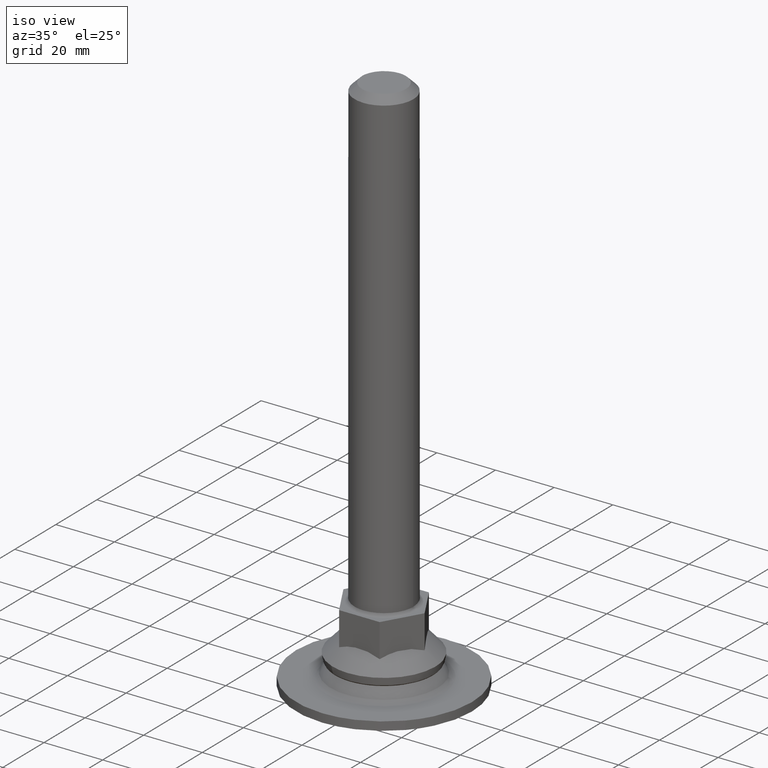
[diagram: clean part render]
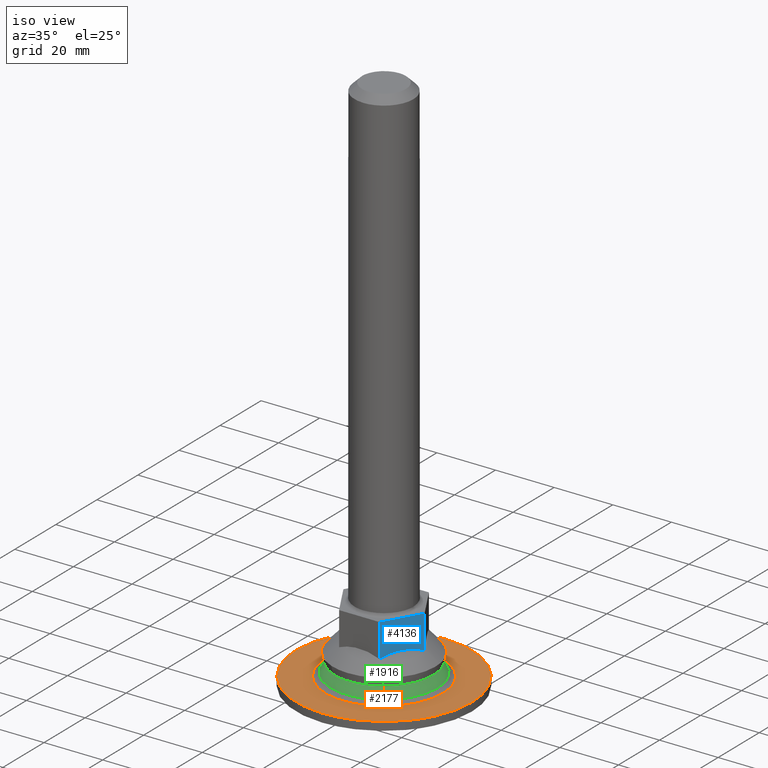
[diagram: same view with three faces highlighted in distinct colors, each labeled with its STEP entity id]
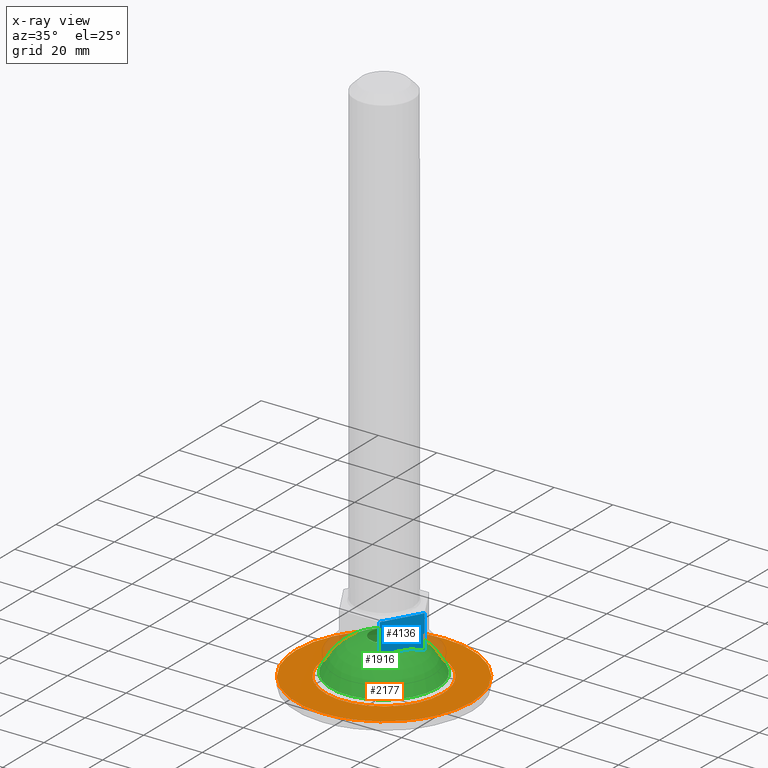
[diagram: x-ray of the same camera — body ghosted, the three highlighted faces saturated]
A machine part, iso view with three faces highlighted in distinct colors.
The next image is the same camera in x-ray (body ghosted, the three faces saturated) — at least one of them is partly hidden behind the body in this view.
Their STEP definitions:

[orange] entity #2177 — the highlighted face is a freeform B-spline surface patch.
#1946=CARTESIAN_POINT('',(-18.113112065568039,-8.523383559939250,2.900000000000000));
#1947=VERTEX_POINT('',#1946);
#1948=CARTESIAN_POINT('',(-20.018314020078449,0.0,2.900000000000000));
#1949=VERTEX_POINT('',#1948);
#1950=CARTESIAN_POINT('',(-18.113112065568039,-8.523383559939250,2.900000000000000));
#1951=CARTESIAN_POINT('',(-18.875215404196680,-6.905380911988671,2.900000000000000));
#1952=CARTESIAN_POINT('',(-19.765607802161401,-4.081268612576571,2.900000000000010));
#1953=CARTESIAN_POINT('',(-20.018380793515661,-1.146418063566522,2.899999999999992));
#1954=CARTESIAN_POINT('',(-20.018314020078449,0.0,2.900000000000000));
#1955=B_SPLINE_CURVE_WITH_KNOTS('',3,(#1950,#1951,#1952,#1953,#1954),.UNSPECIFIED.,.F.,.U.,(4,1,4),(9.962516E-009,5.365258771038956,8.804531681340230),.UNSPECIFIED.);
#1956=EDGE_CURVE('',#1947,#1949,#1955,.T.);
#1970=CARTESIAN_POINT('',(18.113112065568039,8.523383559939244,2.900000000000000));
#1971=VERTEX_POINT('',#1970);
#1981=CARTESIAN_POINT('',(-20.018314020078449,0.0,2.900000000000000));
#1982=CARTESIAN_POINT('',(-20.018619888661600,1.549314066991939,2.899999999999999));
#1983=CARTESIAN_POINT('',(-19.747160723030628,3.873113045565511,2.900000000000000));
#1984=CARTESIAN_POINT('',(-18.838579062397990,6.914709258980910,2.900000000000002));
#1985=CARTESIAN_POINT('',(-17.737672390841201,9.436957946034779,2.900000000000004));
#1986=CARTESIAN_POINT('',(-16.275041612781550,11.773164258463771,2.899999999999985));
#1987=CARTESIAN_POINT('',(-14.362213815928630,14.035715007006740,2.899999999999990));
#1988=CARTESIAN_POINT('',(-11.892065158889981,16.254485176843730,2.900000000000007));
#1989=CARTESIAN_POINT('',(-8.856671574032925,18.081452186412012,2.899999999999953));
#1990=CARTESIAN_POINT('',(-5.614711514958757,19.290760925762498,2.900000000000092));
#1991=CARTESIAN_POINT('',(-2.575555213228644,19.936525534881120,2.899999999999882));
#1992=CARTESIAN_POINT('',(1.024126004391789,20.120718283884528,2.900000000000152));
#1993=CARTESIAN_POINT('',(4.740548224326131,19.581075377136990,2.899999999999757));
#1994=CARTESIAN_POINT('',(8.005974629336039,18.427783213753241,2.900000000000148));
#1995=CARTESIAN_POINT('',(10.749602129699619,16.974266931698690,2.899999999999918));
#1996=CARTESIAN_POINT('',(12.968708523717449,15.339415989959949,2.900000000000034));
#1997=CARTESIAN_POINT('',(15.080340192332891,13.261184725226711,2.899999999999990));
#1998=CARTESIAN_POINT('',(16.761178533215361,11.078230272458780,2.900000000000005));
#1999=CARTESIAN_POINT('',(17.723338515510200,9.351762272085017,2.900000000000000));
#2000=CARTESIAN_POINT('',(18.113112065568039,8.523383559939244,2.900000000000000));
#2001=B_SPLINE_CURVE_WITH_KNOTS('',3,(#1981,#1982,#1983,#1984,#1985,#1986,#1987,#1988,#1989,#1990,#1991,#1992,#1993,#1994,#1995,#1996,#1997,#1998,#1999,#2000),.UNSPECIFIED.,.F.,.U.,(4,1,1,1,1,1,1,1,1,1,1,1,1,1,1,1,1,4),(0.000000131141519,4.647866323908055,6.971903260430949,9.507149627834913,12.887469781130919,15.211461231222779,18.380540329420249,22.817240534353431,25.775041420334642,28.732632208260281,32.112963540191629,36.549684220806569,39.930029233952517,42.465290953835307,45.845637009594661,48.169621989441673,51.338623570747053,54.085124896547342),.UNSPECIFIED.);
#2002=EDGE_CURVE('',#1949,#1971,#2001,.T.);
#2036=CARTESIAN_POINT('',(20.018314020078449,0.0,2.900000000000000));
#2037=VERTEX_POINT('',#2036);
#2038=CARTESIAN_POINT('',(20.018314020078449,0.0,2.900000000000000));
#2039=CARTESIAN_POINT('',(20.018405192923311,-1.267581883032739,2.900000000000001));
#2040=CARTESIAN_POINT('',(19.756755103742218,-4.014098102899047,2.900000000000000));
#2041=CARTESIAN_POINT('',(18.686189119827318,-7.465502171122967,2.899999999999995));
#2042=CARTESIAN_POINT('',(17.169396423438371,-10.414934486880160,2.900000000000025));
#2043=CARTESIAN_POINT('',(15.546408083359440,-12.726730050516510,2.899999999999920));
#2044=CARTESIAN_POINT('',(13.600696688700021,-14.774344361302321,2.900000000000068));
#2045=CARTESIAN_POINT('',(11.229403344878611,-16.667482521605240,2.899999999999939));
#2046=CARTESIAN_POINT('',(8.346648961917992,-18.320825276115119,2.900000000000051));
#2047=CARTESIAN_POINT('',(5.207725591887035,-19.416974232687991,2.899999999999915));
#2048=CARTESIAN_POINT('',(2.012894677695728,-19.990683616203160,2.900000000000056));
#2049=CARTESIAN_POINT('',(-0.883417177077428,-20.077476692384661,2.899999999999954));
#2050=CARTESIAN_POINT('',(-4.176028704004065,-19.670159543430099,2.900000000000027));
#2051=CARTESIAN_POINT('',(-7.365202895572880,-18.730087984996910,2.899999999999894));
#2052=CARTESIAN_POINT('',(-10.837786195906130,-16.983272050579451,2.900000000000036));
#2053=CARTESIAN_POINT('',(-13.633674453955150,-14.807447503587040,2.899999999999988));
#2054=CARTESIAN_POINT('',(-16.222785224871931,-11.914364937945860,2.900000000000008));
#2055=CARTESIAN_POINT('',(-17.483666882358008,-9.861637941204618,2.899999999999998));
#2056=CARTESIAN_POINT('',(-18.113112065568039,-8.523383559939250,2.900000000000000));
#2057=B_SPLINE_CURVE_WITH_KNOTS('',3,(#2038,#2039,#2040,#2041,#2042,#2043,#2044,#2045,#2046,#2047,#2048,#2049,#2050,#2051,#2052,#2053,#2054,#2055,#2056),.UNSPECIFIED.,.F.,.U.,(4,1,1,1,1,1,1,1,1,1,1,1,1,1,1,1,4),(0.000000131144283,3.802777052840192,8.239529131673329,10.774770412061830,13.732556861600910,16.690366738947599,19.225610912040029,22.817240534355449,26.620067246383179,29.155219223113281,32.535540056947042,35.282057722708430,39.084943044304453,42.465290953835073,46.902006972933123,49.648493263510737,54.085124896547320),.UNSPECIFIED.);
#2058=EDGE_CURVE('',#2037,#1947,#2057,.T.);
#2060=CARTESIAN_POINT('',(18.113112065568039,8.523383559939244,2.900000000000000));
#2061=CARTESIAN_POINT('',(18.699028565894860,7.278670371301530,2.900000000000001));
#2062=CARTESIAN_POINT('',(19.673572308727909,4.493823465606035,2.899999999999998));
#2063=CARTESIAN_POINT('',(20.018663847923971,1.559158440353373,2.900000000000005));
#2064=CARTESIAN_POINT('',(20.018314020078449,0.0,2.900000000000000));
#2065=B_SPLINE_CURVE_WITH_KNOTS('',3,(#2060,#2061,#2062,#2063,#2064),.UNSPECIFIED.,.F.,.U.,(4,1,4),(9.962569E-009,4.127131932073279,8.804531681340224),.UNSPECIFIED.);
#2066=EDGE_CURVE('',#1971,#2037,#2065,.T.);
#2075=CARTESIAN_POINT('',(32.996999883708362,-32.996999883708263,2.900000000000000));
#2076=CARTESIAN_POINT('',(-32.997001493033771,-32.996999883708263,2.900000000000000));
#2077=CARTESIAN_POINT('',(32.996999883708362,32.997001493033672,2.900000000000000));
#2078=CARTESIAN_POINT('',(-32.997001493033771,32.997001493033672,2.900000000000000));
#2079=B_SPLINE_SURFACE_WITH_KNOTS('',1,1,((#2075,#2077),(#2076,#2078)),.UNSPECIFIED.,.F.,.F.,.U.,(2,2),(2,2),(0.0,65.994001376742119),(0.0,65.994001376741920),.UNSPECIFIED.);
#2080=CARTESIAN_POINT('',(-0.000002283691672,-29.999999999999911,2.900000000000000));
#2081=VERTEX_POINT('',#2080);
#2082=CARTESIAN_POINT('',(-30.0,0.0,2.900000000000000));
#2083=VERTEX_POINT('',#2082);
#2084=CARTESIAN_POINT('',(-0.000002283691672,-29.999999999999911,2.900000000000000));
#2085=CARTESIAN_POINT('',(-2.208961177880951,-30.000373284448049,2.900000000000003));
#2086=CARTESIAN_POINT('',(-5.706240520861781,-29.611912346888470,2.900000000000000));
#2087=CARTESIAN_POINT('',(-10.544317469293320,-28.192668019797910,2.900000000000000));
#2088=CARTESIAN_POINT('',(-14.242217140759990,-26.512655925152981,2.900000000000001));
#2089=CARTESIAN_POINT('',(-17.514227040420060,-24.440578061141739,2.900000000000000));
#2090=CARTESIAN_POINT('',(-20.569758982123322,-21.964264416280670,2.900000000000017));
#2091=CARTESIAN_POINT('',(-23.226472496466631,-19.139362287466948,2.899999999999970));
#2092=CARTESIAN_POINT('',(-25.821301170741300,-15.478909971472479,2.899999999999984));
#2093=CARTESIAN_POINT('',(-27.699088796766720,-11.804725655738739,2.900000000000055));
#2094=CARTESIAN_POINT('',(-29.054280357175319,-7.785217229191733,2.899999999999956));
#2095=CARTESIAN_POINT('',(-29.821620431839559,-3.988319842244329,2.900000000000007));
#2096=CARTESIAN_POINT('',(-30.000051503538302,-1.349889622246986,2.900000000000030));
#2097=CARTESIAN_POINT('',(-30.0,0.0,2.900000000000000));
#2098=B_SPLINE_CURVE_WITH_KNOTS('',3,(#2084,#2085,#2086,#2087,#2088,#2089,#2090,#2091,#2092,#2093,#2094,#2095,#2096,#2097),.UNSPECIFIED.,.F.,.U.,(4,1,1,1,1,1,1,1,1,1,1,4),(0.000000112095805,6.626774184775670,10.492443001127400,15.094397649301429,18.775966628190719,22.089371245112279,26.875384019600592,30.372833937769780,35.527050463506960,39.208611026297660,43.074296242118670,47.123962440427192),.UNSPECIFIED.);
#2099=EDGE_CURVE('',#2081,#2083,#2098,.T.);
#2100=ORIENTED_EDGE('',*,*,#2099,.F.);
#2101=CARTESIAN_POINT('',(21.761230764353400,-20.650636828246459,2.899999999989337));
#2102=VERTEX_POINT('',#2101);
#2103=CARTESIAN_POINT('',(21.761230764353400,-20.650636828246459,2.899999999989337));
#2104=CARTESIAN_POINT('',(20.495657048084450,-21.984531664734568,2.899999999989995));
#2105=CARTESIAN_POINT('',(17.622421147411121,-24.502482508088029,2.899999999991300));
#2106=CARTESIAN_POINT('',(13.113393234180020,-27.140993312644319,2.899999999993613));
#2107=CARTESIAN_POINT('',(8.475950282914063,-28.893812871716090,2.899999999995831));
#2108=CARTESIAN_POINT('',(4.248106592664441,-29.805583723692290,2.899999999997935));
#2109=CARTESIAN_POINT('',(1.331490132883556,-30.000032944499850,2.899999999999326));
#2110=CARTESIAN_POINT('',(-0.000002283691672,-29.999999999999911,2.900000000000000));
#2111=B_SPLINE_CURVE_WITH_KNOTS('',3,(#2103,#2104,#2105,#2106,#2107,#2108,#2109,#2110),.UNSPECIFIED.,.F.,.U.,(4,1,1,1,1,4),(0.000000031033466,5.516204260663542,11.412871005074511,15.597530635501199,20.352899525812820,24.347385969313699),.UNSPECIFIED.);
#2112=EDGE_CURVE('',#2102,#2081,#2111,.T.);
#2113=ORIENTED_EDGE('',*,*,#2112,.F.);
#2114=CARTESIAN_POINT('',(30.0,0.0,2.900000000000000));
#2115=VERTEX_POINT('',#2114);
#2116=CARTESIAN_POINT('',(30.0,0.0,2.900000000000000));
#2117=CARTESIAN_POINT('',(30.000093212905590,-1.542167683812655,2.899999999999204));
#2118=CARTESIAN_POINT('',(29.779978140082811,-4.389209842370696,2.899999999997734));
#2119=CARTESIAN_POINT('',(28.938837697150401,-8.160144533194908,2.899999999995785));
#2120=CARTESIAN_POINT('',(27.688786776578699,-11.749627900420270,2.899999999993947));
#2121=CARTESIAN_POINT('',(25.577858340573901,-16.013920150272309,2.899999999991712));
#2122=CARTESIAN_POINT('',(23.313109947719148,-19.015991003800242,2.899999999990189));
#2123=CARTESIAN_POINT('',(21.761230764353400,-20.650636828246459,2.899999999989337));
#2124=B_SPLINE_CURVE_WITH_KNOTS('',3,(#2116,#2117,#2118,#2119,#2120,#2121,#2122,#2123),.UNSPECIFIED.,.F.,.U.,(4,1,1,1,1,4),(0.000000026955231,4.626491754648448,8.541232098297826,11.566196807219709,16.014781661445820,22.776579840547289),.UNSPECIFIED.);
#2125=EDGE_CURVE('',#2115,#2102,#2124,.T.);
#2126=ORIENTED_EDGE('',*,*,#2125,.F.);
#2127=CARTESIAN_POINT('',(0.000002283691193,29.999999999999911,2.900000000000000));
#2128=VERTEX_POINT('',#2127);
#2129=CARTESIAN_POINT('',(0.000002283691193,29.999999999999911,2.900000000000000));
#2130=CARTESIAN_POINT('',(2.515803011615498,30.000667260950781,2.899999999999943));
#2131=CARTESIAN_POINT('',(6.258337942315346,29.526345426149959,2.900000000000091));
#2132=CARTESIAN_POINT('',(11.346898901497781,27.879643381288052,2.899999999999899));
#2133=CARTESIAN_POINT('',(15.219198343095410,25.989811297703501,2.900000000000011));
#2134=CARTESIAN_POINT('',(18.553401994423830,23.671936327262340,2.900000000000014));
#2135=CARTESIAN_POINT('',(21.253879054892799,21.254320692358970,2.899999999999994));
#2136=CARTESIAN_POINT('',(23.680936981868101,18.559965327002029,2.899999999999995));
#2137=CARTESIAN_POINT('',(26.361333096069600,14.653625494894280,2.900000000000043));
#2138=CARTESIAN_POINT('',(28.439730915021460,10.041447535947979,2.899999999999888));
#2139=CARTESIAN_POINT('',(29.725093456989971,4.908672661336729,2.900000000000221));
#2140=CARTESIAN_POINT('',(30.000159580651729,1.718067152627474,2.899999999999658));
#2141=CARTESIAN_POINT('',(30.0,0.0,2.900000000000000));
#2142=B_SPLINE_CURVE_WITH_KNOTS('',3,(#2129,#2130,#2131,#2132,#2133,#2134,#2135,#2136,#2137,#2138,#2139,#2140,#2141),.UNSPECIFIED.,.F.,.U.,(4,1,1,1,1,1,1,1,1,1,4),(0.000000112164422,7.547169950694219,11.228753750679351,16.014788149419331,20.432710921048809,23.377971108222329,26.875384019626399,31.293229986729489,37.551921393649081,41.969785402368942,47.123962440427299),.UNSPECIFIED.);
#2143=EDGE_CURVE('',#2128,#2115,#2142,.T.);
#2144=ORIENTED_EDGE('',*,*,#2143,.F.);
#2145=CARTESIAN_POINT('',(-21.761230764353488,20.650636828246551,2.899999999989337));
#2146=VERTEX_POINT('',#2145);
#2147=CARTESIAN_POINT('',(-21.761230764353488,20.650636828246551,2.899999999989337));
#2148=CARTESIAN_POINT('',(-20.495669602348499,21.984561818915349,2.899999999989962));
#2149=CARTESIAN_POINT('',(-18.340652207474982,23.872838888708099,2.899999999991011));
#2150=CARTESIAN_POINT('',(-15.041670197006599,26.019937766906491,2.899999999992639));
#2151=CARTESIAN_POINT('',(-11.592569711171601,27.782381284295749,2.899999999994279));
#2152=CARTESIAN_POINT('',(-6.593859867167510,29.493120256278541,2.899999999996808));
#2153=CARTESIAN_POINT('',(-2.409411469717357,30.000532224907900,2.899999999998804));
#2154=CARTESIAN_POINT('',(0.000002283691193,29.999999999999911,2.900000000000000));
#2155=B_SPLINE_CURVE_WITH_KNOTS('',3,(#2147,#2148,#2149,#2150,#2151,#2152,#2153,#2154),.UNSPECIFIED.,.F.,.U.,(4,1,1,1,1,4),(0.000000031029735,5.516204260661514,8.559631666951963,11.793292878864539,17.119250262268260,24.347385969313251),.UNSPECIFIED.);
#2156=EDGE_CURVE('',#2146,#2128,#2155,.T.);
#2157=ORIENTED_EDGE('',*,*,#2156,.F.);
#2158=CARTESIAN_POINT('',(-30.0,0.0,2.900000000000000));
#2159=CARTESIAN_POINT('',(-30.000084822632680,1.482849935021297,2.899999999999224));
#2160=CARTESIAN_POINT('',(-29.788464936804399,4.329896554535607,2.899999999997787));
#2161=CARTESIAN_POINT('',(-28.817983235552550,8.742805297879075,2.899999999995500));
#2162=CARTESIAN_POINT('',(-27.341543441604770,12.575006884512829,2.899999999993437));
#2163=CARTESIAN_POINT('',(-25.045919676960921,16.735627603869759,2.899999999991485));
#2164=CARTESIAN_POINT('',(-23.149658351734221,19.187974566775150,2.899999999989960));
#2165=CARTESIAN_POINT('',(-21.761230764353488,20.650636828246551,2.899999999989337));
#2166=B_SPLINE_CURVE_WITH_KNOTS('',3,(#2158,#2159,#2160,#2161,#2162,#2163,#2164,#2165),.UNSPECIFIED.,.F.,.U.,(4,1,1,1,1,4),(0.000000026956762,4.448542591393252,8.541232098298481,13.523590427247930,16.726548871562809,22.776579840547360),.UNSPECIFIED.);
#2167=EDGE_CURVE('',#2083,#2146,#2166,.T.);
#2168=ORIENTED_EDGE('',*,*,#2167,.F.);
#2169=EDGE_LOOP('',(#2100,#2113,#2126,#2144,#2157,#2168));
#2170=FACE_OUTER_BOUND('',#2169,.T.);
#2171=ORIENTED_EDGE('',*,*,#2002,.T.);
#2172=ORIENTED_EDGE('',*,*,#2066,.T.);
#2173=ORIENTED_EDGE('',*,*,#2058,.T.);
#2174=ORIENTED_EDGE('',*,*,#1956,.T.);
#2175=EDGE_LOOP('',(#2171,#2172,#2173,#2174));
#2176=FACE_BOUND('',#2175,.T.);
#2177=ADVANCED_FACE('',(#2170,#2176),#2079,.F.);

[blue] entity #4136 — the highlighted face is a freeform B-spline surface patch.
#3981=CARTESIAN_POINT('',(13.856406460551060,-8.673617E-016,14.570158679988101));
#3982=VERTEX_POINT('',#3981);
#3993=CARTESIAN_POINT('',(6.928203230275470,-12.0,14.570158679988181));
#3994=VERTEX_POINT('',#3993);
#3995=CARTESIAN_POINT('',(13.856406460551060,-8.673617E-016,14.570158679988101));
#3996=CARTESIAN_POINT('',(13.106968874772440,-1.298063975670414,15.216984909158370));
#3997=CARTESIAN_POINT('',(11.805988803005970,-3.551427559604250,15.928063655402230));
#3998=CARTESIAN_POINT('',(10.093817720156601,-6.516994866349791,16.058554197888540));
#3999=CARTESIAN_POINT('',(8.542658099331197,-9.203682140268457,15.701828007883339));
#4000=CARTESIAN_POINT('',(7.541405705766399,-10.937902157122780,15.099220077972170));
#4001=CARTESIAN_POINT('',(6.928203230275470,-12.0,14.570158679988181));
#4002=B_SPLINE_CURVE_WITH_KNOTS('',3,(#3995,#3996,#3997,#3998,#3999,#4000,#4001),.UNSPECIFIED.,.F.,.U.,(4,1,1,1,4),(0.000000013731942,4.897296296615570,8.013737511120368,10.239785256543261,14.246664480829541),.UNSPECIFIED.);
#4003=EDGE_CURVE('',#3982,#3994,#4002,.T.);
#4071=CARTESIAN_POINT('',(6.928203230275470,-12.0,26.0));
#4072=VERTEX_POINT('',#4071);
#4078=CARTESIAN_POINT('',(13.856406460551060,0.0,26.0));
#4079=VERTEX_POINT('',#4078);
#4080=CARTESIAN_POINT('',(6.928203230275470,-12.0,26.0));
#4081=CARTESIAN_POINT('',(13.856406460551060,0.0,26.0));
#4082=QUASI_UNIFORM_CURVE('',1,(#4080,#4081),.UNSPECIFIED.,.F.,.U.);
#4083=EDGE_CURVE('',#4072,#4079,#4082,.T.);
#4113=CARTESIAN_POINT('',(13.856406460551060,0.0,26.0));
#4114=CARTESIAN_POINT('',(13.856406460551060,-8.673617E-016,14.570158679988101));
#4115=QUASI_UNIFORM_CURVE('',1,(#4113,#4114),.UNSPECIFIED.,.F.,.U.);
#4116=EDGE_CURVE('',#4079,#3982,#4115,.T.);
#4121=CARTESIAN_POINT('',(14.202470198475149,0.599399976741658,13.999238128206761));
#4122=CARTESIAN_POINT('',(6.582139306522511,-12.599400298606760,13.999238128206761));
#4123=CARTESIAN_POINT('',(14.202470198475149,0.599399976741658,26.570920858353581));
#4124=CARTESIAN_POINT('',(6.582139306522511,-12.599400298606760,26.570920858353581));
#4125=B_SPLINE_SURFACE_WITH_KNOTS('',1,1,((#4121,#4123),(#4122,#4124)),.UNSPECIFIED.,.F.,.F.,.U.,(2,2),(2,2),(0.0,15.240661783905090),(0.0,12.571682730146820),.UNSPECIFIED.);
#4126=ORIENTED_EDGE('',*,*,#4003,.F.);
#4127=ORIENTED_EDGE('',*,*,#4116,.F.);
#4128=ORIENTED_EDGE('',*,*,#4083,.F.);
#4129=CARTESIAN_POINT('',(6.928203230275470,-12.0,26.0));
#4130=CARTESIAN_POINT('',(6.928203230275470,-12.0,14.570158679988181));
#4131=QUASI_UNIFORM_CURVE('',1,(#4129,#4130),.UNSPECIFIED.,.F.,.U.);
#4132=EDGE_CURVE('',#4072,#3994,#4131,.T.);
#4133=ORIENTED_EDGE('',*,*,#4132,.T.);
#4134=EDGE_LOOP('',(#4126,#4127,#4128,#4133));
#4135=FACE_OUTER_BOUND('',#4134,.T.);
#4136=ADVANCED_FACE('',(#4135),#4125,.F.);

[green] entity #1916 — the highlighted face is a freeform B-spline surface patch.
#1750=CARTESIAN_POINT('',(-14.076481076435222,-14.076481076525443,-3.866354921610643));
#1751=CARTESIAN_POINT('',(-9.363367778614974,-18.726735562611225,2.754396729790906));
#1752=CARTESIAN_POINT('',(9.363367780257791,-18.726735562611225,2.754396727513534));
#1753=CARTESIAN_POINT('',(14.076481076467728,-14.076481076525443,-3.866354925034350));
#1754=CARTESIAN_POINT('',(-18.726735558051352,-9.363367783174844,2.754396736112093));
#1755=CARTESIAN_POINT('',(-13.982612026295270,-13.982612039734830,15.907599045579600));
#1756=CARTESIAN_POINT('',(13.982612031137240,-13.982612039734830,15.907599042178729));
#1757=CARTESIAN_POINT('',(18.726735559694166,-9.363367783174844,2.754396731557340));
#1758=CARTESIAN_POINT('',(-18.726735558051352,9.363367775697919,2.754396746477078));
#1759=CARTESIAN_POINT('',(-13.982612026295270,13.982612017697670,15.907599061057960));
#1760=CARTESIAN_POINT('',(13.982612031137240,13.982612017697670,15.907599057657089));
#1761=CARTESIAN_POINT('',(18.726735559694166,9.363367775697919,2.754396741922325));
#1762=CARTESIAN_POINT('',(-14.076481076435222,14.076481076377501,-3.866354906028366));
#1763=CARTESIAN_POINT('',(-9.363367778614974,18.726735555134297,2.754396750520884));
#1764=CARTESIAN_POINT('',(9.363367780257791,18.726735555134297,2.754396748243512));
#1765=CARTESIAN_POINT('',(14.076481076467728,14.076481076377501,-3.866354909452077));
#1773=(BOUNDED_SURFACE()B_SPLINE_SURFACE(2,2,((#1750,#1754,#1758,#1762),(#1751,#1755,#1759,#1763),(#1752,#1756,#1760,#1764),(#1753,#1757,#1761,#1765)),.UNSPECIFIED.,.F.,.F.,.U.)B_SPLINE_SURFACE_WITH_KNOTS((3,1,3),(3,1,3),(0.0,22.432014422683832,44.864028845367663),(0.0,22.432014422683832,44.864028845367649),.UNSPECIFIED.)GEOMETRIC_REPRESENTATION_ITEM()RATIONAL_B_SPLINE_SURFACE(((1.986662995215153,1.493331497607576,1.493331497607576,1.986662995215153),(1.493331497607576,1.0,1.0,1.493331497607576),(1.493331497607576,1.0,1.0,1.493331497607576),(1.986662995215153,1.493331497607576,1.493331497607576,1.986662995215153)))REPRESENTATION_ITEM('')SURFACE());
#1774=CARTESIAN_POINT('',(-16.459520363571439,-7.745262369181214,4.087496536859755));
#1775=VERTEX_POINT('',#1774);
#1776=CARTESIAN_POINT('',(-18.190791618110840,0.0,4.087496541357191));
#1777=VERTEX_POINT('',#1776);
#1778=CARTESIAN_POINT('',(-16.459520363571439,-7.745262369181214,4.087496536859755));
#1779=CARTESIAN_POINT('',(-17.205505356823981,-6.161920403371339,4.087496537827624));
#1780=CARTESIAN_POINT('',(-17.988918894087881,-3.583696922909962,4.087496539350311));
#1781=CARTESIAN_POINT('',(-18.190812806921599,-0.916745217000499,4.087496540850198));
#1782=CARTESIAN_POINT('',(-18.190791618110840,0.0,4.087496541357191));
#1783=B_SPLINE_CURVE_WITH_KNOTS('',3,(#1778,#1779,#1780,#1781,#1782),.UNSPECIFIED.,.F.,.U.,(4,1,4),(0.000000010202357,5.250481571690688,8.000743767758827),.UNSPECIFIED.);
#1784=EDGE_CURVE('',#1775,#1777,#1783,.T.);
#1785=ORIENTED_EDGE('',*,*,#1784,.F.);
#1786=CARTESIAN_POINT('',(18.190791618110850,0.0,4.087496541357194));
#1787=VERTEX_POINT('',#1786);
#1788=CARTESIAN_POINT('',(18.190791618110850,0.0,4.087496541357194));
#1789=CARTESIAN_POINT('',(18.191031725313760,-1.343886001803873,4.087496541320097));
#1790=CARTESIAN_POINT('',(17.898753243798211,-3.967553426592203,4.087496541211457));
#1791=CARTESIAN_POINT('',(16.740680085261399,-7.380026295489862,4.087496540974009));
#1792=CARTESIAN_POINT('',(15.042755348487921,-10.402313938979370,4.087496540680609));
#1793=CARTESIAN_POINT('',(13.238616541234340,-12.582518580367440,4.087496540397307));
#1794=CARTESIAN_POINT('',(10.987145976686479,-14.583227464831980,4.087496540063782));
#1795=CARTESIAN_POINT('',(8.780736283074148,-16.024816126316900,4.087496539751097));
#1796=CARTESIAN_POINT('',(6.080713038118640,-17.214813747249590,4.087496539384488));
#1797=CARTESIAN_POINT('',(3.047032442059254,-18.046153124937700,4.087496538986543));
#1798=CARTESIAN_POINT('',(-0.034227839548009,-18.285257793066780,4.087496538598974));
#1799=CARTESIAN_POINT('',(-3.097784036329761,-17.987883819985480,4.087496538228462));
#1800=CARTESIAN_POINT('',(-5.343010440403911,-17.440413627057030,4.087496537966164));
#1801=CARTESIAN_POINT('',(-7.676244417495242,-16.546578754171978,4.087496537702326));
#1802=CARTESIAN_POINT('',(-10.278497246761169,-15.150673590459830,4.087496537419262));
#1803=CARTESIAN_POINT('',(-12.966726684708810,-12.942282757370490,4.087496537147806));
#1804=CARTESIAN_POINT('',(-15.100562239202519,-10.288355343534050,4.087496536957683));
#1805=CARTESIAN_POINT('',(-16.078102116749829,-8.555911236400243,4.087496536884324));
#1806=CARTESIAN_POINT('',(-16.459520363571439,-7.745262369181214,4.087496536859755));
#1807=B_SPLINE_CURVE_WITH_KNOTS('',3,(#1788,#1789,#1790,#1791,#1792,#1793,#1794,#1795,#1796,#1797,#1798,#1799,#1800,#1801,#1802,#1803,#1804,#1805,#1806),.UNSPECIFIED.,.F.,.U.,(4,1,1,1,1,1,1,1,1,1,1,1,1,1,1,1,4),(0.000000223572094,4.031626561468755,7.871277308285585,10.751028994812170,14.398708319141360,16.318535596434391,19.774287559043469,22.270087144194669,25.149621935430041,29.181297548136261,31.485144753235740,34.364887709978568,36.092736270072812,38.972480873178903,43.196156530560437,46.459855774746607,49.147557368391070),.UNSPECIFIED.);
#1808=EDGE_CURVE('',#1787,#1775,#1807,.T.);
#1809=ORIENTED_EDGE('',*,*,#1808,.F.);
#1810=CARTESIAN_POINT('',(16.459520363571439,7.745262369181216,4.087496536859754));
#1811=VERTEX_POINT('',#1810);
#1812=CARTESIAN_POINT('',(16.459520363571439,7.745262369181216,4.087496536859754));
#1813=CARTESIAN_POINT('',(16.885377025226511,6.840372032447394,4.087496537412841));
#1814=CARTESIAN_POINT('',(17.821452289884899,4.333415570562142,4.087496538914978));
#1815=CARTESIAN_POINT('',(18.191470060995670,1.666902670143839,4.087496540435428));
#1816=CARTESIAN_POINT('',(18.190791618110850,0.0,4.087496541357194));
#1817=B_SPLINE_CURVE_WITH_KNOTS('',3,(#1812,#1813,#1814,#1815,#1816),.UNSPECIFIED.,.F.,.U.,(4,1,4),(0.000000010201759,3.000286540655673,8.000743767758840),.UNSPECIFIED.);
#1818=EDGE_CURVE('',#1811,#1787,#1817,.T.);
#1819=ORIENTED_EDGE('',*,*,#1818,.F.);
#1820=CARTESIAN_POINT('',(-18.190791618110840,0.0,4.087496541357191));
#1821=CARTESIAN_POINT('',(-18.190843802930360,1.023898118901837,4.087496541328912));
#1822=CARTESIAN_POINT('',(-18.001299161039061,3.263688727293675,4.087496541243567));
#1823=CARTESIAN_POINT('',(-17.231779642071722,6.053682379852535,4.087496541071383));
#1824=CARTESIAN_POINT('',(-15.971442875421790,8.859659553508854,4.087496540838010));
#1825=CARTESIAN_POINT('',(-14.222259195888849,11.558160076690219,4.087496540547253));
#1826=CARTESIAN_POINT('',(-11.761482364177700,14.014578926766241,4.087496540175137));
#1827=CARTESIAN_POINT('',(-9.271903113339780,15.716961675481359,4.087496539820377));
#1828=CARTESIAN_POINT('',(-6.976619235167623,16.861708555740950,4.087496539505032));
#1829=CARTESIAN_POINT('',(-4.119100855934136,17.826262076507689,4.087496539125008));
#1830=CARTESIAN_POINT('',(-0.740354111774235,18.304939703327150,4.087496538694261));
#1831=CARTESIAN_POINT('',(3.044349720126413,18.058469114887220,4.087496538233051));
#1832=CARTESIAN_POINT('',(6.273284853259088,17.180149473980158,4.087496537858383));
#1833=CARTESIAN_POINT('',(9.285159726138726,15.743816752515469,4.087496537525515));
#1834=CARTESIAN_POINT('',(11.649778987000770,14.077571544238520,4.087496537279415));
#1835=CARTESIAN_POINT('',(14.301505295690850,11.467938914358021,4.087496537023591));
#1836=CARTESIAN_POINT('',(15.724457780364469,9.309056908286006,4.087496536907505));
#1837=CARTESIAN_POINT('',(16.459520363571439,7.745262369181216,4.087496536859754));
#1838=B_SPLINE_CURVE_WITH_KNOTS('',3,(#1820,#1821,#1822,#1823,#1824,#1825,#1826,#1827,#1828,#1829,#1830,#1831,#1832,#1833,#1834,#1835,#1836,#1837),.UNSPECIFIED.,.F.,.U.,(4,1,1,1,1,1,1,1,1,1,1,1,1,1,1,4),(0.000000223570780,3.071719605092127,6.719345470542599,8.639189117633045,12.286892535371720,16.318535596432369,19.006352085951811,21.310156465424029,23.997932506636872,28.029385071552149,31.485144753234689,35.324802224986477,38.012566697663047,41.468301667891247,43.964040470582930,49.147557368391077),.UNSPECIFIED.);
#1839=EDGE_CURVE('',#1777,#1811,#1838,.T.);
#1840=ORIENTED_EDGE('',*,*,#1839,.F.);
#1841=EDGE_LOOP('',(#1785,#1809,#1819,#1840));
#1842=FACE_OUTER_BOUND('',#1841,.T.);
#1843=CARTESIAN_POINT('',(-4.795581378224700,0.0,15.321358628337199));
#1844=VERTEX_POINT('',#1843);
#1845=CARTESIAN_POINT('',(0.000002795968883,4.795581378223885,15.321358628337199));
#1846=VERTEX_POINT('',#1845);
#1847=CARTESIAN_POINT('',(-4.795581378224700,0.0,15.321358628337199));
#1848=CARTESIAN_POINT('',(-4.795796509263234,0.470825010793181,15.321358628337210));
#1849=CARTESIAN_POINT('',(-4.673225215534171,1.294606861729718,15.321358628337180));
#1850=CARTESIAN_POINT('',(-4.222189473129614,2.346748243797652,15.321358628337229));
#1851=CARTESIAN_POINT('',(-3.586624981617731,3.249308769324431,15.321358628337160));
#1852=CARTESIAN_POINT('',(-2.785821640201593,3.957373553445987,15.321358628337240));
#1853=CARTESIAN_POINT('',(-1.568891582043848,4.607905312834316,15.321358628337149));
#1854=CARTESIAN_POINT('',(-0.627873667666813,4.796290979564080,15.321358628337251));
#1855=CARTESIAN_POINT('',(0.000002795968883,4.795581378223885,15.321358628337199));
#1856=B_SPLINE_CURVE_WITH_KNOTS('',3,(#1847,#1848,#1849,#1850,#1851,#1852,#1853,#1854,#1855),.UNSPECIFIED.,.F.,.U.,(4,1,1,1,1,1,4),(0.000000068945986,1.412432553337552,2.471808474234156,3.413430353265701,4.708147047240956,5.649804181723115,7.533072219674329),.UNSPECIFIED.);
#1857=EDGE_CURVE('',#1844,#1846,#1856,.T.);
#1858=ORIENTED_EDGE('',*,*,#1857,.T.);
#1859=CARTESIAN_POINT('',(3.239848311425697,3.535674004434189,15.321358775478560));
#1860=VERTEX_POINT('',#1859);
#1861=CARTESIAN_POINT('',(0.000002795968883,4.795581378223885,15.321358628337199));
#1862=CARTESIAN_POINT('',(0.407612494961499,4.795698376478289,15.321358646849241));
#1863=CARTESIAN_POINT('',(1.111572790192840,4.705254867271985,15.321358678820481));
#1864=CARTESIAN_POINT('',(2.231164281723593,4.299502930705279,15.321358729667949));
#1865=CARTESIAN_POINT('',(2.884843505062828,3.861319209964700,15.321358759355659));
#1866=CARTESIAN_POINT('',(3.239848311425697,3.535674004434189,15.321358775478560));
#1867=B_SPLINE_CURVE_WITH_KNOTS('',3,(#1861,#1862,#1863,#1864,#1865,#1866),.UNSPECIFIED.,.F.,.U.,(4,1,1,4),(0.000000039521936,1.222823395759540,2.112116667102850,3.557271192324236),.UNSPECIFIED.);
#1868=EDGE_CURVE('',#1846,#1860,#1867,.T.);
#1869=ORIENTED_EDGE('',*,*,#1868,.T.);
#1870=CARTESIAN_POINT('',(4.795581378224700,0.0,15.321358628337199));
#1871=VERTEX_POINT('',#1870);
#1872=CARTESIAN_POINT('',(3.239848311425697,3.535674004434189,15.321358775478560));
#1873=CARTESIAN_POINT('',(3.575805017552330,3.228014046390599,15.321358762674871));
#1874=CARTESIAN_POINT('',(4.185717612826471,2.483704441520031,15.321358731699609));
#1875=CARTESIAN_POINT('',(4.693838515844950,1.242435081882930,15.321358680042660));
#1876=CARTESIAN_POINT('',(4.795636868138133,0.372717916437626,15.321358643848280));
#1877=CARTESIAN_POINT('',(4.795581378224700,0.0,15.321358628337199));
#1878=B_SPLINE_CURVE_WITH_KNOTS('',3,(#1872,#1873,#1874,#1875,#1876,#1877),.UNSPECIFIED.,.F.,.U.,(4,1,1,4),(0.000000071658824,1.366652866199965,2.857545544529644,3.975715614832244),.UNSPECIFIED.);
#1879=EDGE_CURVE('',#1860,#1871,#1878,.T.);
#1880=ORIENTED_EDGE('',*,*,#1879,.T.);
#1881=CARTESIAN_POINT('',(-0.000002795968946,-4.795581378223885,15.321358628337199));
#1882=VERTEX_POINT('',#1881);
#1883=CARTESIAN_POINT('',(4.795581378224700,0.0,15.321358628337199));
#1884=CARTESIAN_POINT('',(4.795798291191037,-0.470823732159708,15.321358628337210));
#1885=CARTESIAN_POINT('',(4.673222971087891,-1.294609041096995,15.321358628337190));
#1886=CARTESIAN_POINT('',(4.222190707565891,-2.346747780248646,15.321358628337221));
#1887=CARTESIAN_POINT('',(3.586622120314349,-3.249303512901344,15.321358628337149));
#1888=CARTESIAN_POINT('',(2.785823165855347,-3.957364099515933,15.321358628337260));
#1889=CARTESIAN_POINT('',(1.568896096984674,-4.607970344651398,15.321358628337080));
#1890=CARTESIAN_POINT('',(0.627863293432844,-4.796211282744914,15.321358628337290));
#1891=CARTESIAN_POINT('',(-0.000002795968946,-4.795581378223885,15.321358628337199));
#1892=B_SPLINE_CURVE_WITH_KNOTS('',3,(#1883,#1884,#1885,#1886,#1887,#1888,#1889,#1890,#1891),.UNSPECIFIED.,.F.,.U.,(4,1,1,1,1,1,4),(0.000000068945289,1.412432553337013,2.471808474233733,3.413430353265367,4.708147047240756,5.649804181722992,7.533072219674376),.UNSPECIFIED.);
#1893=EDGE_CURVE('',#1871,#1882,#1892,.T.);
#1894=ORIENTED_EDGE('',*,*,#1893,.T.);
#1895=CARTESIAN_POINT('',(-3.239848311425708,-3.535674004434201,15.321358775478560));
#1896=VERTEX_POINT('',#1895);
#1897=CARTESIAN_POINT('',(-0.000002795968946,-4.795581378223885,15.321358628337199));
#1898=CARTESIAN_POINT('',(-0.555861711467976,-4.795956163060227,15.321358653582180));
#1899=CARTESIAN_POINT('',(-1.741305476205081,-4.587075434763663,15.321358707420510));
#1900=CARTESIAN_POINT('',(-2.775788618256838,-3.961773671414087,15.321358754402731));
#1901=CARTESIAN_POINT('',(-3.239848311425708,-3.535674004434201,15.321358775478560));
#1902=B_SPLINE_CURVE_WITH_KNOTS('',3,(#1897,#1898,#1899,#1900,#1901),.UNSPECIFIED.,.F.,.U.,(4,1,4),(0.000000039521871,1.667477679052984,3.557271192324179),.UNSPECIFIED.);
#1903=EDGE_CURVE('',#1882,#1896,#1902,.T.);
#1904=ORIENTED_EDGE('',*,*,#1903,.T.);
#1905=CARTESIAN_POINT('',(-3.239848311425708,-3.535674004434201,15.321358775478560));
#1906=CARTESIAN_POINT('',(-3.545259900739112,-3.255963805547590,15.321358763838060));
#1907=CARTESIAN_POINT('',(-4.082915547678399,-2.616784522086166,15.321358737237890));
#1908=CARTESIAN_POINT('',(-4.652647324298741,-1.407919852181267,15.321358686929489));
#1909=CARTESIAN_POINT('',(-4.795845602458593,-0.496995945344770,15.321358649020301));
#1910=CARTESIAN_POINT('',(-4.795581378224700,0.0,15.321358628337199));
#1911=B_SPLINE_CURVE_WITH_KNOTS('',3,(#1905,#1906,#1907,#1908,#1909,#1910),.UNSPECIFIED.,.F.,.U.,(4,1,1,4),(0.000000071658663,1.242411459363258,2.484821394351282,3.975715614832252),.UNSPECIFIED.);
#1912=EDGE_CURVE('',#1896,#1844,#1911,.T.);
#1913=ORIENTED_EDGE('',*,*,#1912,.T.);
#1914=EDGE_LOOP('',(#1858,#1869,#1880,#1894,#1904,#1913));
#1915=FACE_BOUND('',#1914,.T.);
#1916=ADVANCED_FACE('',(#1842,#1915),#1773,.T.);